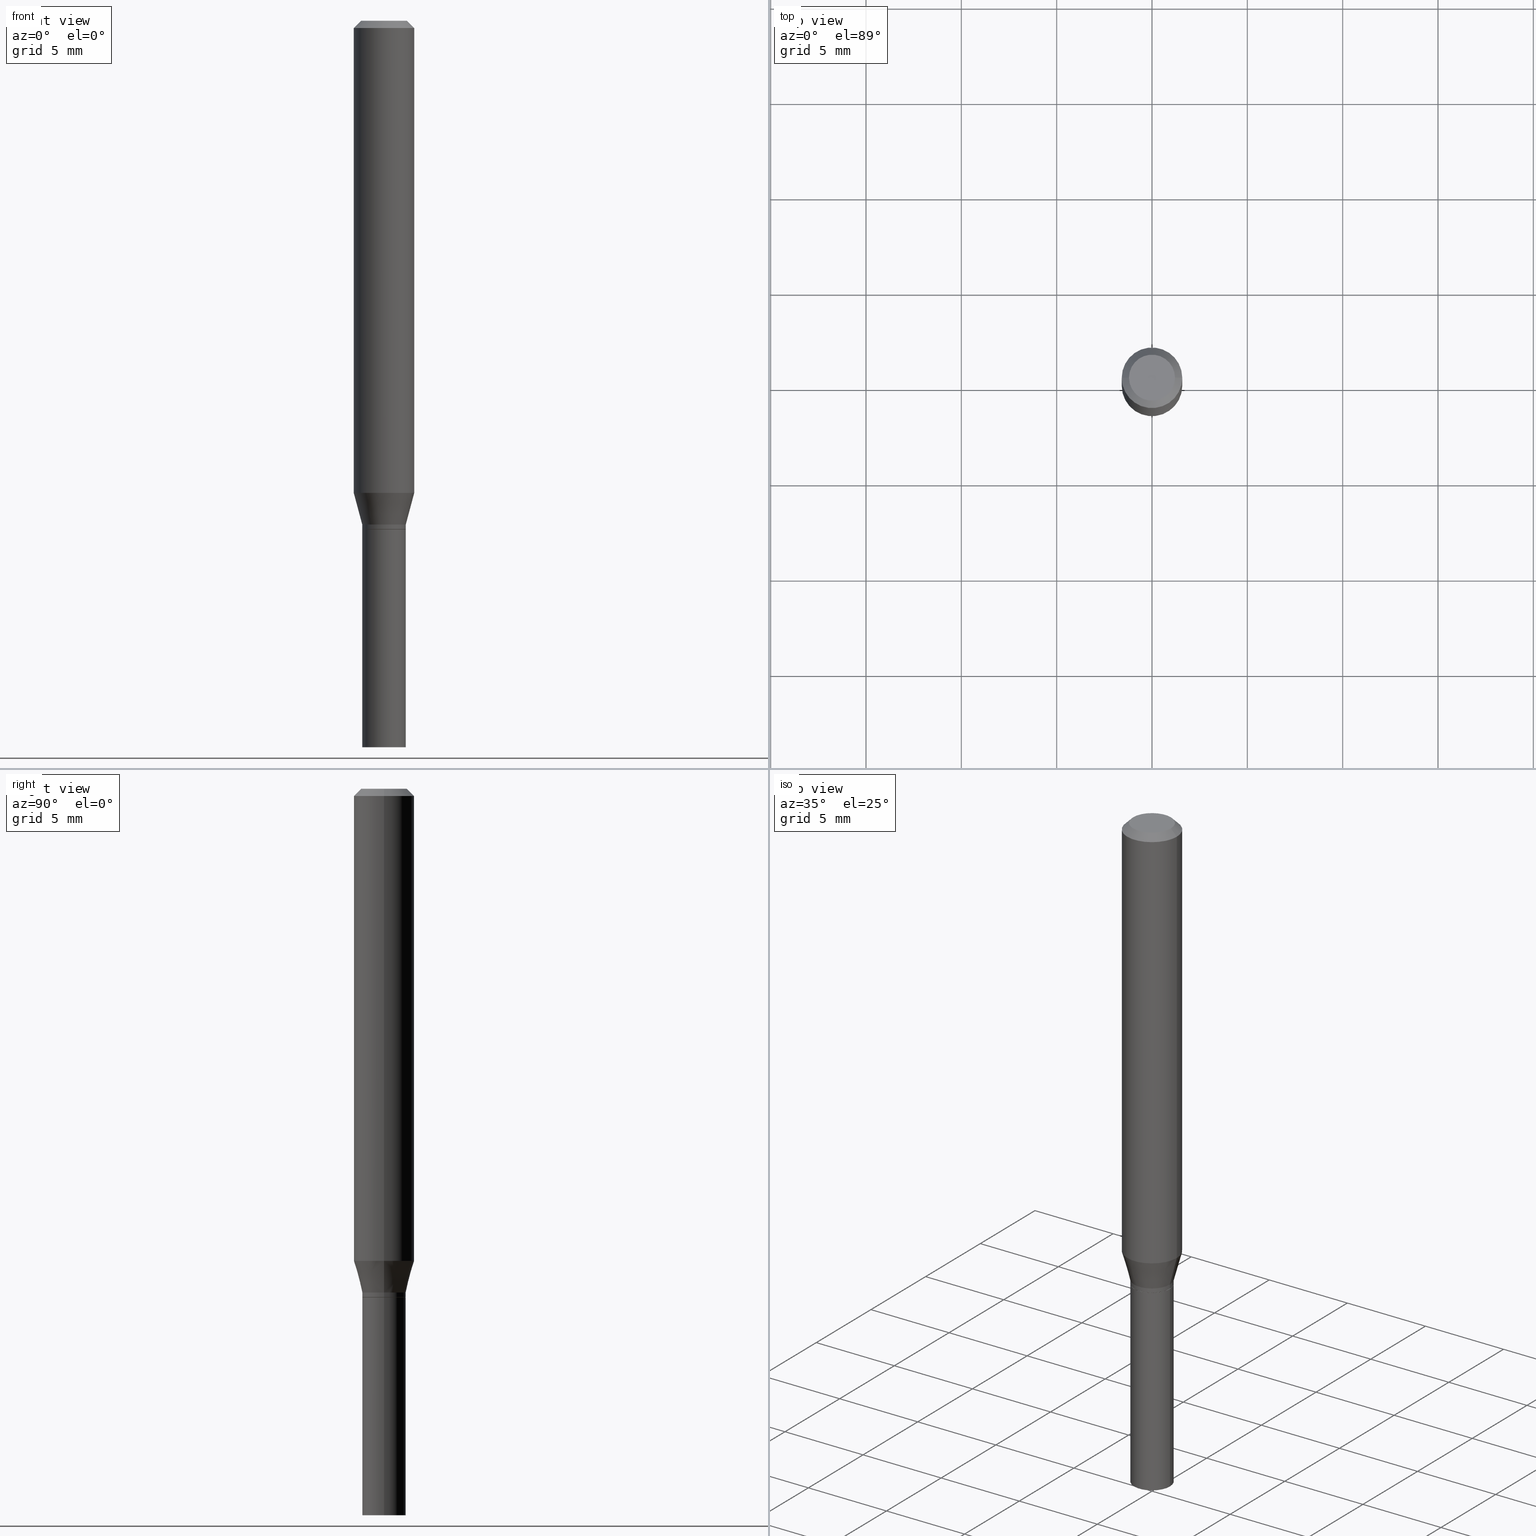
[diagram: canonical four-view strip — front | top / right | iso, engineering-drawing reading convention]
A machine part, canonical four-view strip (front | top / right | iso — engineering-drawing reading convention). The complete STEP part file that produces these views, byte-faithful:
ISO-10303-21;
HEADER;
FILE_DESCRIPTION (( 'STEP AP203' ),
    '1' );
FILE_NAME ('02660.STEP',
    '2024-03-18T21:09:57',
    ( '' ),
    ( '' ),
    'SwSTEP 2.0',
    'SolidWorks 2023',
    '' );
FILE_SCHEMA (( 'CONFIG_CONTROL_DESIGN' ));
ENDSEC;

DATA;
#1 = ADVANCED_FACE ( 'NONE', ( #351 ), #140, .T. ) ;
#2 = CIRCLE ( 'NONE', #56, 0.04749999999999999362 ) ;
#3 = DIRECTION ( 'NONE',  ( 1.000000000000000000, -6.982962677686265922E-15, 4.876176775795935793E-29 ) ) ;
#4 = PERSON_AND_ORGANIZATION_ROLE ( 'classification_officer' ) ;
#5 = CARTESIAN_POINT ( 'NONE',  ( 2.383571816354907179E-29, -3.403108841767650728E-15, -0.9746891108675448390 ) ) ;
#6 = DIRECTION ( 'NONE',  ( 1.000000000000000000, -6.982962677686270655E-15, 0.000000000000000000 ) ) ;
#7 = EDGE_CURVE ( 'NONE', #371, #192, #383, .T. ) ;
#8 = VERTEX_POINT ( 'NONE', #241 ) ;
#9 = AXIS2_PLACEMENT_3D ( 'NONE', #284, #416, #24 ) ;
#10 = CARTESIAN_POINT ( 'NONE',  ( 0.04500000000000004691, -3.142333204958823767E-16, 2.194279549108173419E-30 ) ) ;
#11 = VERTEX_POINT ( 'NONE', #211 ) ;
#12 = DIMENSIONAL_EXPONENTS ( 1.000000000000000000, 0.000000000000000000, 0.000000000000000000, 0.000000000000000000, 0.000000000000000000, 0.000000000000000000, 0.000000000000000000 ) ;
#13 = DIRECTION ( 'NONE',  ( -2.445468806185136597E-29, 3.491481338843145583E-15, 1.000000000000000000 ) ) ;
#14 = EDGE_LOOP ( 'NONE', ( #91, #334, #194, #311 ) ) ;
#15 = FACE_OUTER_BOUND ( 'NONE', #14, .T. ) ;
#16 = VERTEX_POINT ( 'NONE', #142 ) ;
#17 = LOCAL_TIME ( 17, 9, 57.00000000000000000, #37 ) ;
#18 = VECTOR ( 'NONE', #87, 39.37007874015748143 ) ;
#19 = AXIS2_PLACEMENT_3D ( 'NONE', #389, #287, #107 ) ;
#20 = CARTESIAN_POINT ( 'NONE',  ( 0.06250000000000000000, -3.839544009123042397E-15, -0.9746891108675448390 ) ) ;
#21 = LINE ( 'NONE', #361, #247 ) ;
#22 = CC_DESIGN_PERSON_AND_ORGANIZATION_ASSIGNMENT ( #425, #4, ( #199 ) ) ;
#23 = PERSON_AND_ORGANIZATION ( #388, #418 ) ;
#24 = DIRECTION ( 'NONE',  ( 1.000000000000000000, -6.982962677686272233E-15, 0.000000000000000000 ) ) ;
#25 = EDGE_CURVE ( 'NONE', #192, #235, #255, .T. ) ;
#26 = VECTOR ( 'NONE', #50, 39.37007874015748143 ) ;
#27 = FACE_OUTER_BOUND ( 'NONE', #442, .T. ) ;
#28 = CARTESIAN_POINT ( 'NONE',  ( 2.566519512091300961E-29, -3.664309665115881930E-15, -1.049500000000000099 ) ) ;
#29 = PLANE ( 'NONE',  #329 ) ;
#30 = APPROVAL_DATE_TIME ( #146, #191 ) ;
#31 = DIRECTION ( 'NONE',  ( -2.445468806185136597E-29, 3.491481338843145583E-15, 1.000000000000000000 ) ) ;
#32 = LOCAL_TIME ( 17, 9, 57.00000000000000000, #310 ) ;
#33 = DIRECTION ( 'NONE',  ( -2.438088387897960049E-29, 3.491481338843145188E-15, 1.000000000000000000 ) ) ;
#34 = CALENDAR_DATE ( 2024, 18, 3 ) ;
#35 = AXIS2_PLACEMENT_3D ( 'NONE', #333, #161, #195 ) ;
#36 = CARTESIAN_POINT ( 'NONE',  ( 0.04449999999999999789, -3.976797244942342113E-15, -1.050000000000000044 ) ) ;
#37 = COORDINATED_UNIVERSAL_TIME_OFFSET ( 5, 0, .BEHIND. ) ;
#38 = DIRECTION ( 'NONE',  ( 2.438088387897960049E-29, -3.491481338843145188E-15, -1.000000000000000000 ) ) ;
#39 = CONICAL_SURFACE ( 'NONE', #409, 0.06250000000000000000, 0.7853981633974456145 ) ;
#40 = AXIS2_PLACEMENT_3D ( 'NONE', #114, #430, #424 ) ;
#41 = FACE_OUTER_BOUND ( 'NONE', #449, .T. ) ;
#42 = EDGE_CURVE ( 'NONE', #371, #414, #308, .T. ) ;
#43 = DIRECTION ( 'NONE',  ( -2.445468806185136597E-29, 3.491481338843145583E-15, 1.000000000000000000 ) ) ;
#44 = ORIENTED_EDGE ( 'NONE', *, *, #219, .T. ) ;
#45 = FACE_OUTER_BOUND ( 'NONE', #85, .T. ) ;
#46 = ORIENTED_EDGE ( 'NONE', *, *, #132, .T. ) ;
#47 = CIRCLE ( 'NONE', #96, 0.06250000000000000000 ) ;
#48 = CARTESIAN_POINT ( 'NONE',  ( 0.04500000000000004691, -3.945373912892754260E-15, -1.040000000000000036 ) ) ;
#49 = ORIENTED_EDGE ( 'NONE', *, *, #305, .F. ) ;
#50 = DIRECTION ( 'NONE',  ( -2.445468806185136877E-29, 3.491481338843145188E-15, 1.000000000000000000 ) ) ;
#51 = ORIENTED_EDGE ( 'NONE', *, *, #345, .T. ) ;
#52 = ADVANCED_FACE ( 'NONE', ( #317 ), #86, .T. ) ;
#53 = ORIENTED_EDGE ( 'NONE', *, *, #432, .T. ) ;
#54 = APPROVAL_PERSON_ORGANIZATION ( #398, #133, #105 ) ;
#55 = PERSON_AND_ORGANIZATION ( #388, #418 ) ;
#56 = AXIS2_PLACEMENT_3D ( 'NONE', #348, #309, #171 ) ;
#57 = DIRECTION ( 'NONE',  ( -2.445468806185136597E-29, 3.491481338843145583E-15, 1.000000000000000000 ) ) ;
#58 = ADVANCED_FACE ( 'NONE', ( #27 ), #173, .T. ) ;
#59 = DIRECTION ( 'NONE',  ( 2.445468806185136597E-29, -3.491481338843145583E-15, -1.000000000000000000 ) ) ;
#60 = CONICAL_SURFACE ( 'NONE', #390, 0.04449999999999999789, 0.7853981633974739252 ) ;
#61 = CARTESIAN_POINT ( 'NONE',  ( 0.000000000000000000, 0.000000000000000000, 0.000000000000000000 ) ) ;
#62 = CARTESIAN_POINT ( 'NONE',  ( 2.383571816354907179E-29, -3.403108841767650728E-15, -0.9746891108675448390 ) ) ;
#63 = CIRCLE ( 'NONE', #182, 0.04500000000000006078 ) ;
#64 = VECTOR ( 'NONE', #68, 39.37007874015748143 ) ;
#65 = EDGE_LOOP ( 'NONE', ( #266, #417, #223, #157 ) ) ;
#66 = CARTESIAN_POINT ( 'NONE',  ( 3.668203209277704895E-29, -5.237222008264718177E-15, -1.500000000000000222 ) ) ;
#67 = COORDINATED_UNIVERSAL_TIME_OFFSET ( 5, 0, .BEHIND. ) ;
#68 = DIRECTION ( 'NONE',  ( -2.445468806185136877E-29, 3.491481338843145188E-15, 1.000000000000000000 ) ) ;
#69 = CLOSED_SHELL ( 'NONE', ( #58, #282, #180, #257 ) ) ;
#70 = EDGE_CURVE ( 'NONE', #226, #298, #402, .T. ) ;
#71 = DIRECTION ( 'NONE',  ( -2.445468806185136597E-29, 3.491481338843145583E-15, 1.000000000000000000 ) ) ;
#72 = VERTEX_POINT ( 'NONE', #20 ) ;
#73 = DIRECTION ( 'NONE',  ( -1.000000000000000000, 6.982962677686265922E-15, -4.876176775795935793E-29 ) ) ;
#74 = DATE_AND_TIME ( #34, #155 ) ;
#75 = CARTESIAN_POINT ( 'NONE',  ( 2.543287558432542218E-29, -3.631140592396871785E-15, -1.040000000000000036 ) ) ;
#76 = EDGE_CURVE ( 'NONE', #337, #302, #349, .T. ) ;
#77 = AXIS2_PLACEMENT_3D ( 'NONE', #248, #59, #387 ) ;
#78 = LINE ( 'NONE', #220, #101 ) ;
#79 = ORIENTED_EDGE ( 'NONE', *, *, #406, .F. ) ;
#80 = CARTESIAN_POINT ( 'NONE',  ( 2.543287558432542218E-29, -3.631140592396871785E-15, -1.040000000000000036 ) ) ;
#81 = ORIENTED_EDGE ( 'NONE', *, *, #356, .T. ) ;
#82 = DIRECTION ( 'NONE',  ( -2.445468806185136597E-29, 3.491481338843145583E-15, 1.000000000000000000 ) ) ;
#83 = LOCAL_TIME ( 17, 9, 57.00000000000000000, #290 ) ;
#84 = CC_DESIGN_DATE_AND_TIME_ASSIGNMENT ( #150, #184, ( #199 ) ) ;
#85 = EDGE_LOOP ( 'NONE', ( #307, #263, #131, #459 ) ) ;
#86 = CONICAL_SURFACE ( 'NONE', #77, 0.06250000000000000000, 0.7853981633974456145 ) ;
#87 = DIRECTION ( 'NONE',  ( 0.2588190451025205174, 1.565188264969628476E-15, 0.9659258262890684232 ) ) ;
#88 = EDGE_CURVE ( 'NONE', #337, #340, #2, .T. ) ;
#89 = EDGE_LOOP ( 'NONE', ( #360, #176, #435, #412 ) ) ;
#90 = DIRECTION ( 'NONE',  ( 1.000000000000000000, -6.982962677686266711E-15, 4.876176775795935793E-29 ) ) ;
#91 = ORIENTED_EDGE ( 'NONE', *, *, #160, .T. ) ;
#92 = CARTESIAN_POINT ( 'NONE',  ( 0.000000000000000000, 0.000000000000000000, 0.000000000000000000 ) ) ;
#93 = EDGE_CURVE ( 'NONE', #16, #302, #236, .T. ) ;
#94 = AXIS2_PLACEMENT_3D ( 'NONE', #365, #267, #190 ) ;
#95 = PERSON_AND_ORGANIZATION ( #388, #418 ) ;
#96 = AXIS2_PLACEMENT_3D ( 'NONE', #62, #451, #204 ) ;
#97 = CARTESIAN_POINT ( 'NONE',  ( -0.04500000000000004691, 3.197442310920454169E-16, -2.213520790614710012E-30 ) ) ;
#98 = DIRECTION ( 'NONE',  ( -2.445468806185136597E-29, 3.491481338843145583E-15, 1.000000000000000000 ) ) ;
#99 = ORIENTED_EDGE ( 'NONE', *, *, #274, .F. ) ;
#100 = CARTESIAN_POINT ( 'NONE',  ( -0.06250000000000000000, 4.440892098500626162E-16, -3.074334431409316114E-30 ) ) ;
#101 = VECTOR ( 'NONE', #434, 39.37007874015748143 ) ;
#102 = VERTEX_POINT ( 'NONE', #169 ) ;
#103 = EDGE_CURVE ( 'NONE', #72, #16, #47, .T. ) ;
#104 = DIRECTION ( 'NONE',  ( -1.000000000000000000, 6.982962677686265922E-15, -4.876176775795935793E-29 ) ) ;
#105 = APPROVAL_ROLE ( '' ) ;
#106 = CC_DESIGN_PERSON_AND_ORGANIZATION_ASSIGNMENT ( #256, #396, ( #278 ) ) ;
#107 = DIRECTION ( 'NONE',  ( 1.000000000000000000, -6.982962677686266711E-15, 0.000000000000000000 ) ) ;
#108 = SHAPE_DEFINITION_REPRESENTATION ( #227, #201 ) ;
#109 = CC_DESIGN_SECURITY_CLASSIFICATION ( #199, ( #278 ) ) ;
#110 = DIRECTION ( 'NONE',  ( -2.445468806185136597E-29, 3.491481338843145583E-15, 1.000000000000000000 ) ) ;
#111 = ORIENTED_EDGE ( 'NONE', *, *, #439, .F. ) ;
#112 = FACE_OUTER_BOUND ( 'NONE', #196, .T. ) ;
#113 = CALENDAR_DATE ( 2024, 18, 3 ) ;
#114 = CARTESIAN_POINT ( 'NONE',  ( 2.567742246494393763E-29, -3.666055405785303434E-15, -1.050000000000000044 ) ) ;
#115 = DATE_TIME_ROLE ( 'creation_date' ) ;
#116 = LOCAL_TIME ( 17, 9, 57.00000000000000000, #250 ) ;
#117 = DIRECTION ( 'NONE',  ( 1.000000000000000000, -6.982962677686267499E-15, 4.876176775795935793E-29 ) ) ;
#118 = CONICAL_SURFACE ( 'NONE', #137, 0.04500000000000004691, 0.2617993877991491858 ) ;
#119 = EDGE_LOOP ( 'NONE', ( #159, #373 ) ) ;
#120 = AXIS2_PLACEMENT_3D ( 'NONE', #61, #379, #422 ) ;
#121 = DIRECTION ( 'NONE',  ( 1.000000000000000000, -6.982962677686267499E-15, 4.884662768193073002E-29 ) ) ;
#122 = EDGE_LOOP ( 'NONE', ( #343, #46, #455, #458 ) ) ;
#123 = CARTESIAN_POINT ( 'NONE',  ( 0.06250000000000000000, -4.364351673553916694E-16, 3.047610484872459871E-30 ) ) ;
#124 = ORIENTED_EDGE ( 'NONE', *, *, #42, .T. ) ;
#125 = FACE_OUTER_BOUND ( 'NONE', #89, .T. ) ;
#126 = ORIENTED_EDGE ( 'NONE', *, *, #212, .F. ) ;
#127 = AXIS2_PLACEMENT_3D ( 'NONE', #186, #295, #3 ) ;
#128 = CARTESIAN_POINT ( 'NONE',  ( -0.04499999999999999833, -4.131894475932966226E-15, -1.050000000000000044 ) ) ;
#129 = EDGE_LOOP ( 'NONE', ( #277, #437, #81, #244 ) ) ;
#130 =( LENGTH_UNIT ( ) NAMED_UNIT ( * ) SI_UNIT ( $, .METRE. ) );
#131 = ORIENTED_EDGE ( 'NONE', *, *, #457, .F. ) ;
#132 = EDGE_CURVE ( 'NONE', #340, #102, #21, .T. ) ;
#133 = APPROVAL ( #325, 'UNSPECIFIED' ) ;
#134 = APPROVAL_STATUS ( 'not_yet_approved' ) ;
#135 = EDGE_LOOP ( 'NONE', ( #444, #285 ) ) ;
#136 = CC_DESIGN_APPROVAL ( #191, ( #278 ) ) ;
#137 = AXIS2_PLACEMENT_3D ( 'NONE', #80, #13, #189 ) ;
#138 = MANIFOLD_SOLID_BREP ( 'Body-Move/Copy2[1]', #69 ) ;
#139 = DIRECTION ( 'NONE',  ( 1.000000000000000000, -6.982962677686269077E-15, 0.000000000000000000 ) ) ;
#140 = CYLINDRICAL_SURFACE ( 'NONE', #120, 0.06250000000000000000 ) ;
#141 = EDGE_CURVE ( 'NONE', #8, #271, #344, .T. ) ;
#142 = CARTESIAN_POINT ( 'NONE',  ( -0.06250000000000000000, -2.959019631917587717E-15, -0.9746891108675448390 ) ) ;
#143 =( GEOMETRIC_REPRESENTATION_CONTEXT ( 3 ) GLOBAL_UNCERTAINTY_ASSIGNED_CONTEXT ( ( #144 ) ) GLOBAL_UNIT_ASSIGNED_CONTEXT ( ( #276, #234, #170 ) ) REPRESENTATION_CONTEXT ( 'NONE', 'WORKASPACE' ) );
#144 = UNCERTAINTY_MEASURE_WITH_UNIT (LENGTH_MEASURE( 1.000000000000000082E-05 ), #276, 'distance_accuracy_value', 'NONE');
#145 = DIRECTION ( 'NONE',  ( 0.7071067811865454633, -7.319954787623246579E-15, -0.7071067811865493491 ) ) ;
#146 = DATE_AND_TIME ( #294, #83 ) ;
#147 = DIRECTION ( 'NONE',  ( 1.000000000000000000, -6.982962677686269077E-15, 0.000000000000000000 ) ) ;
#148 = EDGE_CURVE ( 'NONE', #414, #371, #63, .T. ) ;
#149 = DIRECTION ( 'NONE',  ( -2.445468806185136597E-29, 3.491481338843145583E-15, 1.000000000000000000 ) ) ;
#150 = DATE_AND_TIME ( #358, #17 ) ;
#151 = CARTESIAN_POINT ( 'NONE',  ( -0.04500000000000004691, -3.311396361304826023E-15, -1.040000000000000036 ) ) ;
#152 = DIRECTION ( 'NONE',  ( -2.445468806185136597E-29, 3.491481338843145583E-15, 1.000000000000000000 ) ) ;
#153 = DIRECTION ( 'NONE',  ( 0.7071067811865656694, -2.468850131082446387E-15, 0.7071067811865294761 ) ) ;
#154 = EDGE_LOOP ( 'NONE', ( #207, #124, #419, #304 ) ) ;
#155 = LOCAL_TIME ( 17, 9, 57.00000000000000000, #67 ) ;
#156 = CYLINDRICAL_SURFACE ( 'NONE', #229, 0.06250000000000000000 ) ;
#157 = ORIENTED_EDGE ( 'NONE', *, *, #264, .F. ) ;
#158 = DIRECTION ( 'NONE',  ( -2.445468806185136877E-29, 3.491481338843145188E-15, 1.000000000000000000 ) ) ;
#159 = ORIENTED_EDGE ( 'NONE', *, *, #70, .T. ) ;
#160 = EDGE_CURVE ( 'NONE', #198, #11, #166, .T. ) ;
#161 = DIRECTION ( 'NONE',  ( -2.445468806185136597E-29, 3.491481338843145583E-15, 1.000000000000000000 ) ) ;
#162 = ORIENTED_EDGE ( 'NONE', *, *, #292, .F. ) ;
#163 = APPROVAL_PERSON_ORGANIZATION ( #55, #447, #346 ) ;
#164 = CARTESIAN_POINT ( 'NONE',  ( -0.04749999999999999362, 3.578768372314211985E-16, 8.673617379884694910E-17 ) ) ;
#165 = ORIENTED_EDGE ( 'NONE', *, *, #345, .F. ) ;
#166 = CIRCLE ( 'NONE', #456, 0.04449999999999999789 ) ;
#167 = DIRECTION ( 'NONE',  ( 0.000000000000000000, 0.000000000000000000, 1.000000000000000000 ) ) ;
#168 = CARTESIAN_POINT ( 'NONE',  ( -0.06250000000000000000, 3.840629472727444916E-16, -0.01499999999999999944 ) ) ;
#169 = CARTESIAN_POINT ( 'NONE',  ( 0.06250000000000000000, -4.888073874380388472E-16, -0.01499999999999999944 ) ) ;
#170 =( NAMED_UNIT ( * ) SI_UNIT ( $, .STERADIAN. ) SOLID_ANGLE_UNIT ( ) );
#171 = DIRECTION ( 'NONE',  ( 1.000000000000000000, -6.982962677686267499E-15, 4.884662768193073002E-29 ) ) ;
#172 = VECTOR ( 'NONE', #404, 39.37007874015748143 ) ;
#173 = CYLINDRICAL_SURFACE ( 'NONE', #411, 0.04499999999999999833 ) ;
#174 = ADVANCED_FACE ( 'NONE', ( #397 ), #29, .F. ) ;
#175 = CIRCLE ( 'NONE', #441, 0.06250000000000000000 ) ;
#176 = ORIENTED_EDGE ( 'NONE', *, *, #88, .F. ) ;
#177 = FACE_OUTER_BOUND ( 'NONE', #281, .T. ) ;
#178 = AXIS2_PLACEMENT_3D ( 'NONE', #273, #228, #117 ) ;
#179 = AXIS2_PLACEMENT_3D ( 'NONE', #75, #149, #319 ) ;
#180 = ADVANCED_FACE ( 'NONE', ( #112 ), #217, .T. ) ;
#181 = CARTESIAN_POINT ( 'NONE',  ( 2.566519512091300961E-29, -3.664309665115881930E-15, -1.049500000000000099 ) ) ;
#182 = AXIS2_PLACEMENT_3D ( 'NONE', #181, #71, #328 ) ;
#183 = LINE ( 'NONE', #151, #347 ) ;
#184 = DATE_TIME_ROLE ( 'classification_date' ) ;
#185 = CARTESIAN_POINT ( 'NONE',  ( 2.567742246494393763E-29, -3.666055405785303434E-15, -1.050000000000000044 ) ) ;
#186 = CARTESIAN_POINT ( 'NONE',  ( 2.567742246494393763E-29, -3.666055405785303434E-15, -1.050000000000000044 ) ) ;
#187 = PERSON_AND_ORGANIZATION ( #388, #418 ) ;
#188 = ADVANCED_FACE ( 'NONE', ( #465 ), #428, .F. ) ;
#189 = DIRECTION ( 'NONE',  ( 1.000000000000000000, -6.982962677686272233E-15, 0.000000000000000000 ) ) ;
#190 = DIRECTION ( 'NONE',  ( 1.000000000000000000, -6.982962677686272233E-15, 0.000000000000000000 ) ) ;
#191 = APPROVAL ( #427, 'UNSPECIFIED' ) ;
#192 = VERTEX_POINT ( 'NONE', #359 ) ;
#193 = DIRECTION ( 'NONE',  ( -2.445468806185136597E-29, 3.491481338843145583E-15, 1.000000000000000000 ) ) ;
#194 = ORIENTED_EDGE ( 'NONE', *, *, #148, .F. ) ;
#195 = DIRECTION ( 'NONE',  ( 1.000000000000000000, -6.982962677686267499E-15, 0.000000000000000000 ) ) ;
#196 = EDGE_LOOP ( 'NONE', ( #165, #44, #275, #230 ) ) ;
#197 = DIRECTION ( 'NONE',  ( 1.000000000000000000, -6.982962677686267499E-15, 0.000000000000000000 ) ) ;
#198 = VERTEX_POINT ( 'NONE', #36 ) ;
#199 = SECURITY_CLASSIFICATION ( '', '', #216 ) ;
#200 = ORIENTED_EDGE ( 'NONE', *, *, #141, .T. ) ;
#201 = ADVANCED_BREP_SHAPE_REPRESENTATION ( '02660', ( #138, #464, #291 ), #143 ) ;
#202 = AXIS2_PLACEMENT_3D ( 'NONE', #323, #395, #104 ) ;
#203 = PERSON_AND_ORGANIZATION_ROLE ( 'design_owner' ) ;
#204 = DIRECTION ( 'NONE',  ( 1.000000000000000000, -6.982962677686270655E-15, 0.000000000000000000 ) ) ;
#205 = CARTESIAN_POINT ( 'NONE',  ( 0.000000000000000000, 0.000000000000000000, 0.000000000000000000 ) ) ;
#206 = CARTESIAN_POINT ( 'NONE',  ( 2.567742246494393763E-29, -3.666055405785303434E-15, -1.050000000000000044 ) ) ;
#207 = ORIENTED_EDGE ( 'NONE', *, *, #7, .F. ) ;
#208 = ADVANCED_FACE ( 'NONE', ( #258 ), #353, .T. ) ;
#209 = AXIS2_PLACEMENT_3D ( 'NONE', #28, #350, #382 ) ;
#210 = DIRECTION ( 'NONE',  ( -2.445468806185136877E-29, 3.491481338843145188E-15, 1.000000000000000000 ) ) ;
#211 = CARTESIAN_POINT ( 'NONE',  ( -0.04449999999999999789, -3.347214661197947369E-15, -1.050000000000000044 ) ) ;
#212 = EDGE_CURVE ( 'NONE', #11, #198, #448, .T. ) ;
#213 = LINE ( 'NONE', #327, #64 ) ;
#214 = APPROVAL_ROLE ( '' ) ;
#215 = PLANE ( 'NONE',  #438 ) ;
#216 = SECURITY_CLASSIFICATION_LEVEL ( 'unclassified' ) ;
#217 = CYLINDRICAL_SURFACE ( 'NONE', #322, 0.04499999999999999833 ) ;
#218 = DIRECTION ( 'NONE',  ( 1.000000000000000000, -6.982962677686269077E-15, 0.000000000000000000 ) ) ;
#219 = EDGE_CURVE ( 'NONE', #271, #8, #380, .T. ) ;
#220 = CARTESIAN_POINT ( 'NONE',  ( -0.04449999999999999789, -3.349863888372058570E-15, -1.050000000000000044 ) ) ;
#221 = VECTOR ( 'NONE', #210, 39.37007874015748143 ) ;
#222 = CARTESIAN_POINT ( 'NONE',  ( 0.04449999999999999789, -3.976797244942342113E-15, -1.050000000000000044 ) ) ;
#223 = ORIENTED_EDGE ( 'NONE', *, *, #439, .T. ) ;
#224 = CIRCLE ( 'NONE', #341, 0.04749999999999999362 ) ;
#225 = DIRECTION ( 'NONE',  ( 1.000000000000000000, -6.982962677686269077E-15, 0.000000000000000000 ) ) ;
#226 = VERTEX_POINT ( 'NONE', #260 ) ;
#227 = PRODUCT_DEFINITION_SHAPE ( 'NONE', 'NONE',  #316 ) ;
#228 = DIRECTION ( 'NONE',  ( -2.445468806185136597E-29, 3.491481338843145583E-15, 1.000000000000000000 ) ) ;
#229 = AXIS2_PLACEMENT_3D ( 'NONE', #407, #98, #90 ) ;
#230 = ORIENTED_EDGE ( 'NONE', *, *, #370, .F. ) ;
#231 = CLOSED_SHELL ( 'NONE', ( #385, #312, #52, #1, #352, #242, #461, #376, #174, #188, #297, #208 ) ) ;
#232 = CARTESIAN_POINT ( 'NONE',  ( 2.567742246494393763E-29, -3.666055405785303434E-15, -1.050000000000000044 ) ) ;
#233 = ORIENTED_EDGE ( 'NONE', *, *, #103, .T. ) ;
#234 =( NAMED_UNIT ( * ) PLANE_ANGLE_UNIT ( ) SI_UNIT ( $, .RADIAN. ) );
#235 = VERTEX_POINT ( 'NONE', #324 ) ;
#236 = LINE ( 'NONE', #100, #238 ) ;
#237 = CIRCLE ( 'NONE', #320, 0.06250000000000000000 ) ;
#238 = VECTOR ( 'NONE', #245, 39.37007874015748143 ) ;
#239 = CALENDAR_DATE ( 2024, 18, 3 ) ;
#240 = PRODUCT_RELATED_PRODUCT_CATEGORY ( 'detail', '', ( #445 ) ) ;
#241 = CARTESIAN_POINT ( 'NONE',  ( 0.04499999999999999833, -5.551455328760600652E-15, -1.500000000000000222 ) ) ;
#242 = ADVANCED_FACE ( 'NONE', ( #177 ), #462, .T. ) ;
#243 = CONICAL_SURFACE ( 'NONE', #35, 0.04449999999999999789, 0.7853981633974739252 ) ;
#244 = ORIENTED_EDGE ( 'NONE', *, *, #42, .F. ) ;
#245 = DIRECTION ( 'NONE',  ( -2.445468806185136877E-29, 3.491481338843145188E-15, 1.000000000000000000 ) ) ;
#246 = CIRCLE ( 'NONE', #270, 0.04499999999999999833 ) ;
#247 = VECTOR ( 'NONE', #145, 39.37007874015748854 ) ;
#248 = CARTESIAN_POINT ( 'NONE',  ( 3.668203209277705088E-31, -5.237222008264718399E-17, -0.01499999999999999944 ) ) ;
#249 = CARTESIAN_POINT ( 'NONE',  ( 3.316907271900976096E-16, 0.04749999999999999362, -1.224772766956247324E-16 ) ) ;
#250 = COORDINATED_UNIVERSAL_TIME_OFFSET ( 5, 0, .BEHIND. ) ;
#251 = PLANE ( 'NONE',  #202 ) ;
#252 = CIRCLE ( 'NONE', #94, 0.04500000000000004691 ) ;
#253 = CC_DESIGN_PERSON_AND_ORGANIZATION_ASSIGNMENT ( #431, #261, ( #278 ) ) ;
#254 = DIRECTION ( 'NONE',  ( 1.000000000000000000, -6.982962677686267499E-15, 0.000000000000000000 ) ) ;
#255 = CIRCLE ( 'NONE', #9, 0.04500000000000004691 ) ;
#256 = PERSON_AND_ORGANIZATION ( #388, #418 ) ;
#257 = ADVANCED_FACE ( 'NONE', ( #460 ), #251, .F. ) ;
#258 = FACE_OUTER_BOUND ( 'NONE', #154, .T. ) ;
#259 = DATE_AND_TIME ( #113, #116 ) ;
#260 = CARTESIAN_POINT ( 'NONE',  ( 0.04499999999999999833, -3.980288726281185120E-15, -1.050000000000000044 ) ) ;
#261 = PERSON_AND_ORGANIZATION_ROLE ( 'design_supplier' ) ;
#262 = LINE ( 'NONE', #123, #26 ) ;
#263 = ORIENTED_EDGE ( 'NONE', *, *, #7, .T. ) ;
#264 = EDGE_CURVE ( 'NONE', #302, #102, #321, .T. ) ;
#265 = LINE ( 'NONE', #440, #172 ) ;
#266 = ORIENTED_EDGE ( 'NONE', *, *, #93, .F. ) ;
#267 = DIRECTION ( 'NONE',  ( -2.445468806185136597E-29, 3.491481338843145583E-15, 1.000000000000000000 ) ) ;
#268 = EDGE_LOOP ( 'NONE', ( #233, #366, #49, #111 ) ) ;
#269 = DIRECTION ( 'NONE',  ( -2.445468806185136597E-29, 3.491481338843145583E-15, 1.000000000000000000 ) ) ;
#270 = AXIS2_PLACEMENT_3D ( 'NONE', #303, #82, #225 ) ;
#271 = VERTEX_POINT ( 'NONE', #289 ) ;
#272 = AXIS2_PLACEMENT_3D ( 'NONE', #426, #152, #218 ) ;
#273 = CARTESIAN_POINT ( 'NONE',  ( 0.000000000000000000, 0.000000000000000000, 0.000000000000000000 ) ) ;
#274 = EDGE_CURVE ( 'NONE', #8, #226, #213, .T. ) ;
#275 = ORIENTED_EDGE ( 'NONE', *, *, #274, .T. ) ;
#276 =( CONVERSION_BASED_UNIT ( 'INCH', #374 ) LENGTH_UNIT ( ) NAMED_UNIT ( #12 ) );
#277 = ORIENTED_EDGE ( 'NONE', *, *, #420, .F. ) ;
#278 = PRODUCT_DEFINITION_FORMATION_WITH_SPECIFIED_SOURCE ( 'ANY', '', #445, .NOT_KNOWN. ) ;
#279 = DATE_AND_TIME ( #239, #32 ) ;
#280 = APPLICATION_CONTEXT ( 'configuration controlled 3d designs of mechanical parts and assemblies' ) ;
#281 = EDGE_LOOP ( 'NONE', ( #162, #403, #53, #79 ) ) ;
#282 = ADVANCED_FACE ( 'NONE', ( #357 ), #215, .F. ) ;
#283 = ORIENTED_EDGE ( 'NONE', *, *, #219, .F. ) ;
#284 = CARTESIAN_POINT ( 'NONE',  ( 2.543287558432542218E-29, -3.631140592396871785E-15, -1.040000000000000036 ) ) ;
#285 = ORIENTED_EDGE ( 'NONE', *, *, #326, .T. ) ;
#286 = DIRECTION ( 'NONE',  ( 1.000000000000000000, -6.982962677686267499E-15, 4.876176775795935793E-29 ) ) ;
#287 = DIRECTION ( 'NONE',  ( -2.445468806185136597E-29, 3.491481338843145583E-15, 1.000000000000000000 ) ) ;
#288 = APPROVAL_DATE_TIME ( #259, #133 ) ;
#289 = CARTESIAN_POINT ( 'NONE',  ( -0.04499999999999999833, -4.131894475932966226E-15, -1.500000000000000222 ) ) ;
#290 = COORDINATED_UNIVERSAL_TIME_OFFSET ( 5, 0, .BEHIND. ) ;
#291 = AXIS2_PLACEMENT_3D ( 'NONE', #205, #167, #452 ) ;
#292 = EDGE_CURVE ( 'NONE', #192, #16, #183, .T. ) ;
#293 = CARTESIAN_POINT ( 'NONE',  ( 0.000000000000000000, 0.000000000000000000, 0.000000000000000000 ) ) ;
#294 = CALENDAR_DATE ( 2024, 18, 3 ) ;
#295 = DIRECTION ( 'NONE',  ( -2.438088387897960049E-29, 3.491481338843145188E-15, 1.000000000000000000 ) ) ;
#296 = DIRECTION ( 'NONE',  ( 1.000000000000000000, -6.982962677686266711E-15, 0.000000000000000000 ) ) ;
#297 = ADVANCED_FACE ( 'NONE', ( #446 ), #243, .T. ) ;
#298 = VERTEX_POINT ( 'NONE', #128 ) ;
#299 = LINE ( 'NONE', #222, #378 ) ;
#300 = ORIENTED_EDGE ( 'NONE', *, *, #457, .T. ) ;
#301 = CARTESIAN_POINT ( 'NONE',  ( 0.04749999999999999362, -4.035134999187577144E-16, 8.673617379885194112E-17 ) ) ;
#302 = VERTEX_POINT ( 'NONE', #369 ) ;
#303 = CARTESIAN_POINT ( 'NONE',  ( 2.567742246494393763E-29, -3.666055405785303434E-15, -1.050000000000000044 ) ) ;
#304 = ORIENTED_EDGE ( 'NONE', *, *, #25, .F. ) ;
#305 = EDGE_CURVE ( 'NONE', #102, #302, #175, .T. ) ;
#306 = CARTESIAN_POINT ( 'NONE',  ( 3.668203209277705088E-31, -5.237222008264718399E-17, -0.01499999999999999944 ) ) ;
#307 = ORIENTED_EDGE ( 'NONE', *, *, #148, .T. ) ;
#308 = CIRCLE ( 'NONE', #209, 0.04500000000000006078 ) ;
#309 = DIRECTION ( 'NONE',  ( -2.445468806185136597E-29, 3.491481338843145583E-15, 1.000000000000000000 ) ) ;
#310 = COORDINATED_UNIVERSAL_TIME_OFFSET ( 5, 0, .BEHIND. ) ;
#311 = ORIENTED_EDGE ( 'NONE', *, *, #356, .F. ) ;
#312 = ADVANCED_FACE ( 'NONE', ( #15 ), #60, .T. ) ;
#313 = PERSON_AND_ORGANIZATION_ROLE ( 'creator' ) ;
#314 = DIRECTION ( 'NONE',  ( -2.445468806185136597E-29, 3.491481338843145583E-15, 1.000000000000000000 ) ) ;
#315 = ORIENTED_EDGE ( 'NONE', *, *, #103, .F. ) ;
#316 = PRODUCT_DEFINITION ( 'UNKNOWN', '', #278, #391 ) ;
#317 = FACE_OUTER_BOUND ( 'NONE', #122, .T. ) ;
#318 = APPROVAL_PERSON_ORGANIZATION ( #187, #191, #214 ) ;
#319 = DIRECTION ( 'NONE',  ( 1.000000000000000000, -6.982962677686272233E-15, 0.000000000000000000 ) ) ;
#320 = AXIS2_PLACEMENT_3D ( 'NONE', #5, #43, #6 ) ;
#321 = CIRCLE ( 'NONE', #19, 0.06250000000000000000 ) ;
#322 = AXIS2_PLACEMENT_3D ( 'NONE', #293, #31, #399 ) ;
#323 = CARTESIAN_POINT ( 'NONE',  ( 3.142333204959076202E-16, 0.04499999999999633460, -1.050000000000000266 ) ) ;
#324 = CARTESIAN_POINT ( 'NONE',  ( 0.04500000000000004691, -3.945373912892754260E-15, -1.040000000000000036 ) ) ;
#325 = APPROVAL_STATUS ( 'not_yet_approved' ) ;
#326 = EDGE_CURVE ( 'NONE', #340, #337, #224, .T. ) ;
#327 = CARTESIAN_POINT ( 'NONE',  ( 0.04499999999999999833, -3.142333204958819823E-16, 2.194279549108170967E-30 ) ) ;
#328 = DIRECTION ( 'NONE',  ( 1.000000000000000000, -6.982962677686269866E-15, 0.000000000000000000 ) ) ;
#329 = AXIS2_PLACEMENT_3D ( 'NONE', #249, #38, #73 ) ;
#330 = DIRECTION ( 'NONE',  ( -1.000000000000000000, 6.982962677686266711E-15, 0.000000000000000000 ) ) ;
#331 = FACE_OUTER_BOUND ( 'NONE', #65, .T. ) ;
#332 = ORIENTED_EDGE ( 'NONE', *, *, #160, .F. ) ;
#333 = CARTESIAN_POINT ( 'NONE',  ( 2.567742246494393763E-29, -3.666055405785303434E-15, -1.050000000000000044 ) ) ;
#334 = ORIENTED_EDGE ( 'NONE', *, *, #420, .T. ) ;
#335 = CC_DESIGN_DATE_AND_TIME_ASSIGNMENT ( #74, #115, ( #316 ) ) ;
#336 = CARTESIAN_POINT ( 'NONE',  ( -0.04500000000000006078, -3.344565434023836168E-15, -1.049500000000000099 ) ) ;
#337 = VERTEX_POINT ( 'NONE', #164 ) ;
#338 = EDGE_CURVE ( 'NONE', #414, #235, #363, .T. ) ;
#339 = DIRECTION ( 'NONE',  ( -0.2588190451025205174, 5.211531920934544731E-15, 0.9659258262890684232 ) ) ;
#340 = VERTEX_POINT ( 'NONE', #301 ) ;
#341 = AXIS2_PLACEMENT_3D ( 'NONE', #401, #269, #121 ) ;
#342 = VECTOR ( 'NONE', #158, 39.37007874015748143 ) ;
#343 = ORIENTED_EDGE ( 'NONE', *, *, #326, .F. ) ;
#344 = CIRCLE ( 'NONE', #272, 0.04499999999999999833 ) ;
#345 = EDGE_CURVE ( 'NONE', #271, #298, #265, .T. ) ;
#346 = APPROVAL_ROLE ( '' ) ;
#347 = VECTOR ( 'NONE', #339, 39.37007874015748143 ) ;
#348 = CARTESIAN_POINT ( 'NONE',  ( -2.121106073929386760E-45, 3.028377322213383622E-31, 8.673617379884936499E-17 ) ) ;
#349 = LINE ( 'NONE', #168, #423 ) ;
#350 = DIRECTION ( 'NONE',  ( -2.445468806185136597E-29, 3.491481338843145583E-15, 1.000000000000000000 ) ) ;
#351 = FACE_OUTER_BOUND ( 'NONE', #268, .T. ) ;
#352 = ADVANCED_FACE ( 'NONE', ( #41 ), #118, .T. ) ;
#353 = CYLINDRICAL_SURFACE ( 'NONE', #400, 0.04500000000000004691 ) ;
#354 = CC_DESIGN_PERSON_AND_ORGANIZATION_ASSIGNMENT ( #95, #203, ( #445 ) ) ;
#355 = CARTESIAN_POINT ( 'NONE',  ( 3.576687321579069994E-29, -5.368277968210015545E-15, -1.500000000000000222 ) ) ;
#356 = EDGE_CURVE ( 'NONE', #198, #414, #299, .T. ) ;
#357 = FACE_OUTER_BOUND ( 'NONE', #453, .T. ) ;
#358 = CALENDAR_DATE ( 2024, 18, 3 ) ;
#359 = CARTESIAN_POINT ( 'NONE',  ( -0.04500000000000004691, -3.135207996611206870E-15, -1.040000000000000036 ) ) ;
#360 = ORIENTED_EDGE ( 'NONE', *, *, #132, .F. ) ;
#361 = CARTESIAN_POINT ( 'NONE',  ( 0.06250000000000000000, -4.811533449433679005E-16, -0.01499999999999999944 ) ) ;
#362 = CC_DESIGN_APPROVAL ( #133, ( #199 ) ) ;
#363 = LINE ( 'NONE', #10, #342 ) ;
#364 = AXIS2_PLACEMENT_3D ( 'NONE', #66, #110, #147 ) ;
#365 = CARTESIAN_POINT ( 'NONE',  ( 2.543287558432542218E-29, -3.631140592396871785E-15, -1.040000000000000036 ) ) ;
#366 = ORIENTED_EDGE ( 'NONE', *, *, #93, .T. ) ;
#367 = DIRECTION ( 'NONE',  ( 2.445468806185136597E-29, -3.491481338843145583E-15, -1.000000000000000000 ) ) ;
#368 = ORIENTED_EDGE ( 'NONE', *, *, #432, .F. ) ;
#369 = CARTESIAN_POINT ( 'NONE',  ( -0.06250000000000000000, -1.283651321075086287E-15, -0.01499999999999999944 ) ) ;
#370 = EDGE_CURVE ( 'NONE', #298, #226, #246, .T. ) ;
#371 = VERTEX_POINT ( 'NONE', #336 ) ;
#372 = CYLINDRICAL_SURFACE ( 'NONE', #178, 0.04500000000000004691 ) ;
#373 = ORIENTED_EDGE ( 'NONE', *, *, #370, .T. ) ;
#374 = LENGTH_MEASURE_WITH_UNIT ( LENGTH_MEASURE( 0.02539999999999999897 ), #130 );
#375 = ORIENTED_EDGE ( 'NONE', *, *, #141, .F. ) ;
#376 = ADVANCED_FACE ( 'NONE', ( #125 ), #39, .T. ) ;
#377 = APPLICATION_PROTOCOL_DEFINITION ( 'international standard', 'config_control_design', 1994, #386 ) ;
#378 = VECTOR ( 'NONE', #153, 39.37007874015748143 ) ;
#379 = DIRECTION ( 'NONE',  ( -2.445468806185136597E-29, 3.491481338843145583E-15, 1.000000000000000000 ) ) ;
#380 = CIRCLE ( 'NONE', #364, 0.04499999999999999833 ) ;
#381 = APPROVAL_DATE_TIME ( #279, #447 ) ;
#382 = DIRECTION ( 'NONE',  ( 1.000000000000000000, -6.982962677686269866E-15, 0.000000000000000000 ) ) ;
#383 = LINE ( 'NONE', #97, #221 ) ;
#384 = DIRECTION ( 'NONE',  ( 1.000000000000000000, -6.982962677686266711E-15, 4.876176775795935793E-29 ) ) ;
#385 = ADVANCED_FACE ( 'NONE', ( #45 ), #372, .T. ) ;
#386 = APPLICATION_CONTEXT ( 'configuration controlled 3d designs of mechanical parts and assemblies' ) ;
#387 = DIRECTION ( 'NONE',  ( -1.000000000000000000, 6.982962677686266711E-15, 0.000000000000000000 ) ) ;
#388 = PERSON ( 'UNSPECIFIED', 'UNSPECIFIED', 'UNSPECIFIED', ('UNSPECIFIED'), ('UNSPECIFIED'), ('UNSPECIFIED') ) ;
#389 = CARTESIAN_POINT ( 'NONE',  ( 3.668203209277705088E-31, -5.237222008264718399E-17, -0.01499999999999999944 ) ) ;
#390 = AXIS2_PLACEMENT_3D ( 'NONE', #232, #436, #197 ) ;
#391 = DESIGN_CONTEXT ( 'detailed design', #386, 'design' ) ;
#392 = CC_DESIGN_APPROVAL ( #447, ( #316 ) ) ;
#393 = DIRECTION ( 'NONE',  ( -2.445468806185136597E-29, 3.491481338843145583E-15, 1.000000000000000000 ) ) ;
#394 = AXIS2_PLACEMENT_3D ( 'NONE', #206, #57, #139 ) ;
#395 = DIRECTION ( 'NONE',  ( 2.438088387897960049E-29, -3.491481338843145188E-15, -1.000000000000000000 ) ) ;
#396 = PERSON_AND_ORGANIZATION_ROLE ( 'creator' ) ;
#397 = FACE_OUTER_BOUND ( 'NONE', #135, .T. ) ;
#398 = PERSON_AND_ORGANIZATION ( #388, #418 ) ;
#399 = DIRECTION ( 'NONE',  ( 1.000000000000000000, -6.982962677686266711E-15, 4.876176775795935793E-29 ) ) ;
#400 = AXIS2_PLACEMENT_3D ( 'NONE', #433, #463, #286 ) ;
#401 = CARTESIAN_POINT ( 'NONE',  ( -2.121106073929386760E-45, 3.028377322213383622E-31, 8.673617379884936499E-17 ) ) ;
#402 = CIRCLE ( 'NONE', #394, 0.04499999999999999833 ) ;
#403 = ORIENTED_EDGE ( 'NONE', *, *, #25, .T. ) ;
#404 = DIRECTION ( 'NONE',  ( -2.445468806185136877E-29, 3.491481338843145188E-15, 1.000000000000000000 ) ) ;
#405 = EDGE_LOOP ( 'NONE', ( #332, #126 ) ) ;
#406 = EDGE_CURVE ( 'NONE', #16, #72, #237, .T. ) ;
#407 = CARTESIAN_POINT ( 'NONE',  ( 0.000000000000000000, 0.000000000000000000, 0.000000000000000000 ) ) ;
#408 = ORIENTED_EDGE ( 'NONE', *, *, #292, .T. ) ;
#409 = AXIS2_PLACEMENT_3D ( 'NONE', #306, #367, #330 ) ;
#410 = LINE ( 'NONE', #48, #18 ) ;
#411 = AXIS2_PLACEMENT_3D ( 'NONE', #92, #314, #384 ) ;
#412 = ORIENTED_EDGE ( 'NONE', *, *, #264, .T. ) ;
#413 = CARTESIAN_POINT ( 'NONE',  ( 0.04500000000000006078, -3.978542985611764405E-15, -1.049500000000000099 ) ) ;
#414 = VERTEX_POINT ( 'NONE', #413 ) ;
#415 = MECHANICAL_CONTEXT ( 'NONE', #280, 'mechanical' ) ;
#416 = DIRECTION ( 'NONE',  ( -2.445468806185136597E-29, 3.491481338843145583E-15, 1.000000000000000000 ) ) ;
#417 = ORIENTED_EDGE ( 'NONE', *, *, #406, .T. ) ;
#418 = ORGANIZATION ( 'UNSPECIFIED', 'UNSPECIFIED', '' ) ;
#419 = ORIENTED_EDGE ( 'NONE', *, *, #338, .T. ) ;
#420 = EDGE_CURVE ( 'NONE', #11, #371, #78, .T. ) ;
#421 = DIRECTION ( 'NONE',  ( -0.7071067811865454633, 2.468850131082235761E-15, -0.7071067811865493491 ) ) ;
#422 = DIRECTION ( 'NONE',  ( 1.000000000000000000, -6.982962677686266711E-15, 4.876176775795935793E-29 ) ) ;
#423 = VECTOR ( 'NONE', #421, 39.37007874015748854 ) ;
#424 = DIRECTION ( 'NONE',  ( 1.000000000000000000, -6.982962677686267499E-15, 0.000000000000000000 ) ) ;
#425 = PERSON_AND_ORGANIZATION ( #388, #418 ) ;
#426 = CARTESIAN_POINT ( 'NONE',  ( 3.668203209277704895E-29, -5.237222008264718177E-15, -1.500000000000000222 ) ) ;
#427 = APPROVAL_STATUS ( 'not_yet_approved' ) ;
#428 = PLANE ( 'NONE',  #127 ) ;
#429 = ORIENTED_EDGE ( 'NONE', *, *, #70, .F. ) ;
#430 = DIRECTION ( 'NONE',  ( -2.445468806185136597E-29, 3.491481338843145583E-15, 1.000000000000000000 ) ) ;
#431 = PERSON_AND_ORGANIZATION ( #388, #418 ) ;
#432 = EDGE_CURVE ( 'NONE', #235, #72, #410, .T. ) ;
#433 = CARTESIAN_POINT ( 'NONE',  ( 0.000000000000000000, 0.000000000000000000, 0.000000000000000000 ) ) ;
#434 = DIRECTION ( 'NONE',  ( -0.7071067811865656694, 7.493145998870420424E-15, 0.7071067811865294761 ) ) ;
#435 = ORIENTED_EDGE ( 'NONE', *, *, #76, .T. ) ;
#436 = DIRECTION ( 'NONE',  ( -2.445468806185136597E-29, 3.491481338843145583E-15, 1.000000000000000000 ) ) ;
#437 = ORIENTED_EDGE ( 'NONE', *, *, #212, .T. ) ;
#438 = AXIS2_PLACEMENT_3D ( 'NONE', #355, #33, #466 ) ;
#439 = EDGE_CURVE ( 'NONE', #72, #102, #262, .T. ) ;
#440 = CARTESIAN_POINT ( 'NONE',  ( -0.04499999999999999833, 3.197442310920450718E-16, -2.213520790614707560E-30 ) ) ;
#441 = AXIS2_PLACEMENT_3D ( 'NONE', #443, #193, #296 ) ;
#442 = EDGE_LOOP ( 'NONE', ( #200, #51, #429, #99 ) ) ;
#443 = CARTESIAN_POINT ( 'NONE',  ( 3.668203209277705088E-31, -5.237222008264718399E-17, -0.01499999999999999944 ) ) ;
#444 = ORIENTED_EDGE ( 'NONE', *, *, #88, .T. ) ;
#445 = PRODUCT ( '02660', '02660', '', ( #415 ) ) ;
#446 = FACE_OUTER_BOUND ( 'NONE', #129, .T. ) ;
#447 = APPROVAL ( #134, 'UNSPECIFIED' ) ;
#448 = CIRCLE ( 'NONE', #40, 0.04449999999999999789 ) ;
#449 = EDGE_LOOP ( 'NONE', ( #300, #408, #315, #368 ) ) ;
#450 = APPLICATION_PROTOCOL_DEFINITION ( 'international standard', 'config_control_design', 1994, #280 ) ;
#451 = DIRECTION ( 'NONE',  ( -2.445468806185136597E-29, 3.491481338843145583E-15, 1.000000000000000000 ) ) ;
#452 = DIRECTION ( 'NONE',  ( 1.000000000000000000, 0.000000000000000000, 0.000000000000000000 ) ) ;
#453 = EDGE_LOOP ( 'NONE', ( #375, #283 ) ) ;
#454 = CC_DESIGN_PERSON_AND_ORGANIZATION_ASSIGNMENT ( #23, #313, ( #316 ) ) ;
#455 = ORIENTED_EDGE ( 'NONE', *, *, #305, .T. ) ;
#456 = AXIS2_PLACEMENT_3D ( 'NONE', #185, #393, #254 ) ;
#457 = EDGE_CURVE ( 'NONE', #235, #192, #252, .T. ) ;
#458 = ORIENTED_EDGE ( 'NONE', *, *, #76, .F. ) ;
#459 = ORIENTED_EDGE ( 'NONE', *, *, #338, .F. ) ;
#460 = FACE_OUTER_BOUND ( 'NONE', #119, .T. ) ;
#461 = ADVANCED_FACE ( 'NONE', ( #331 ), #156, .T. ) ;
#462 = CONICAL_SURFACE ( 'NONE', #179, 0.04500000000000004691, 0.2617993877991491858 ) ;
#463 = DIRECTION ( 'NONE',  ( -2.445468806185136597E-29, 3.491481338843145583E-15, 1.000000000000000000 ) ) ;
#464 = MANIFOLD_SOLID_BREP ( 'Body-Move/Copy2[2]', #231 ) ;
#465 = FACE_OUTER_BOUND ( 'NONE', #405, .T. ) ;
#466 = DIRECTION ( 'NONE',  ( 1.000000000000000000, -6.982962677686265922E-15, 4.876176775795935793E-29 ) ) ;
ENDSEC;
END-ISO-10303-21;
